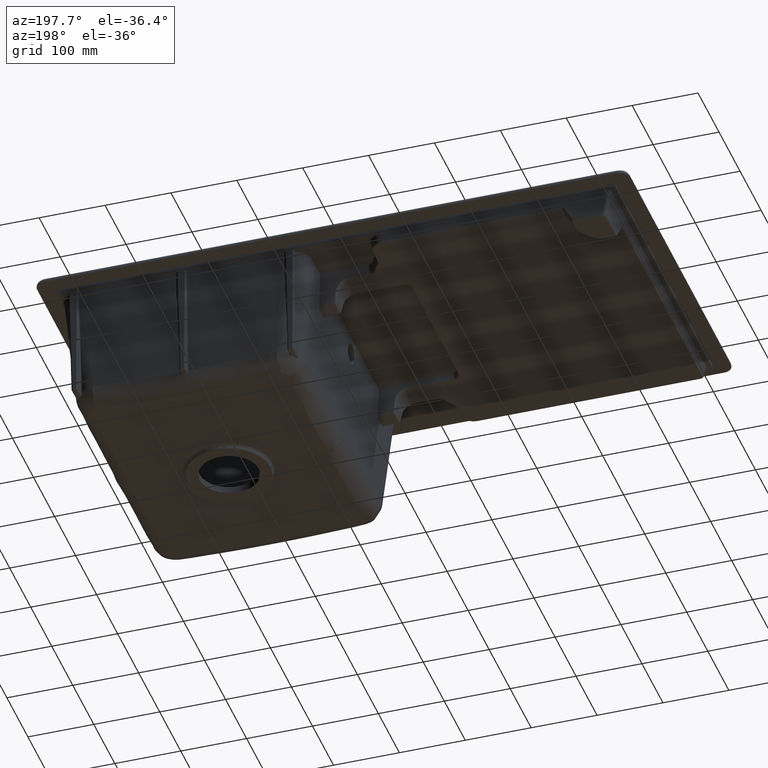
[diagram: clean part render]
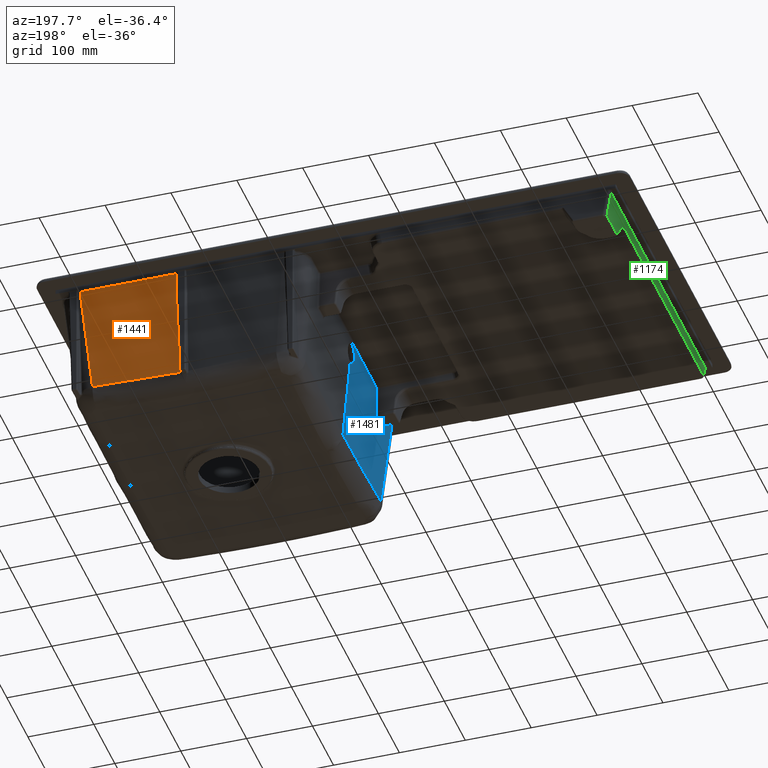
[diagram: same view with three faces highlighted in distinct colors, each labeled with its STEP entity id]
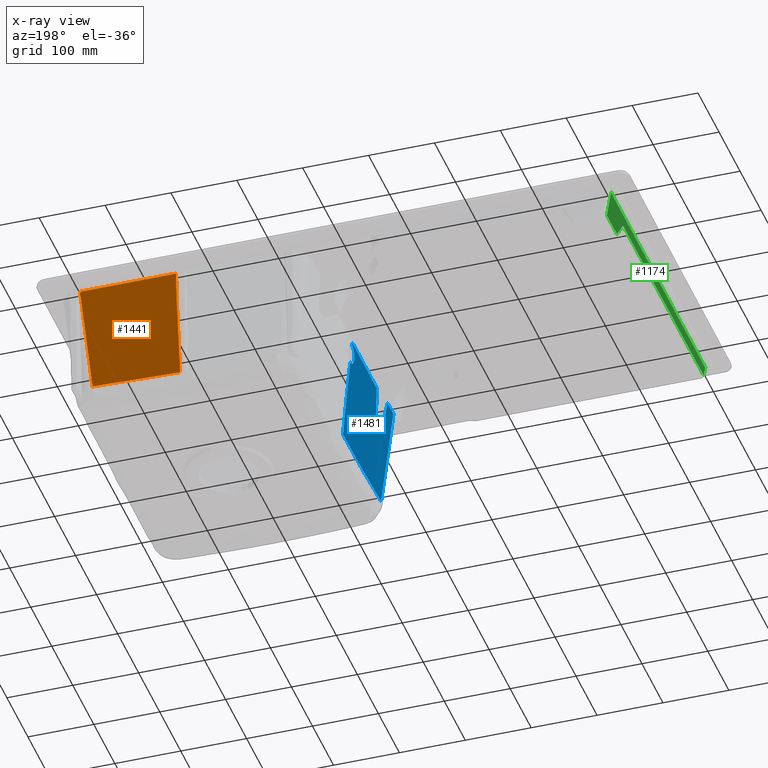
[diagram: x-ray of the same camera — body ghosted, the three highlighted faces saturated]
A machine part, auxiliary view with three faces highlighted in distinct colors.
The next image is the same camera in x-ray (body ghosted, the three faces saturated) — at least one of them is partly hidden behind the body in this view.
Their STEP definitions:

[orange] entity #1441 — the highlighted planar face has unit normal (0, 0.9962, -0.0872).
#310=PLANE('',#5599);
#496=B_SPLINE_CURVE_WITH_KNOTS('',3,(#13981,#13982,#13983,#13984),
 .UNSPECIFIED.,.F.,.F.,(4,4),(0.,1.),.UNSPECIFIED.);
#565=ELLIPSE('',#5532,76.4366617339651,4.);
#865=LINE('',#13273,#1097);
#866=LINE('',#13296,#1098);
#904=LINE('',#13979,#1136);
#1097=VECTOR('',#6525,1.);
#1098=VECTOR('',#6532,1.);
#1136=VECTOR('',#6702,1.);
#1441=ADVANCED_FACE('',(#1791),#310,.T.);
#1791=FACE_OUTER_BOUND('',#2133,.T.);
#2133=EDGE_LOOP('',(#3488,#3489,#3490,#3491,#3492));
#3488=ORIENTED_EDGE('',*,*,#4754,.T.);
#3489=ORIENTED_EDGE('',*,*,#4756,.T.);
#3490=ORIENTED_EDGE('',*,*,#4757,.T.);
#3491=ORIENTED_EDGE('',*,*,#4857,.F.);
#3492=ORIENTED_EDGE('',*,*,#4858,.F.);
#3995=VERTEX_POINT('',#12109);
#4078=VERTEX_POINT('',#13272);
#4079=VERTEX_POINT('',#13274);
#4080=VERTEX_POINT('',#13297);
#4131=VERTEX_POINT('',#13980);
#4754=EDGE_CURVE('',#4079,#4078,#865,.T.);
#4756=EDGE_CURVE('',#4078,#3995,#565,.T.);
#4757=EDGE_CURVE('',#3995,#4080,#866,.T.);
#4857=EDGE_CURVE('',#4131,#4080,#904,.T.);
#4858=EDGE_CURVE('',#4079,#4131,#496,.T.);
#5532=AXIS2_PLACEMENT_3D('',#13277,#6530,#6531);
#5599=AXIS2_PLACEMENT_3D('',#13985,#6703,#6704);
#6525=DIRECTION('',(0.0138685207499616,0.0871473607568921,0.996098891498889));
#6530=DIRECTION('',(0.,-0.996194698091746,0.0871557427476581));
#6531=DIRECTION('',(-0.0139066043304501,-0.0871473146568106,-0.996098364572547));
#6532=DIRECTION('',(1.,0.,0.));
#6702=DIRECTION('',(0.0868265938642475,0.0868265938642475,0.992432509138967));
#6703=DIRECTION('',(0.,0.996194698091746,-0.0871557427476581));
#6704=DIRECTION('',(0.,-0.0871557427476581,-0.996194698091746));
#12109=CARTESIAN_POINT('',(242.875574203679,227.54600273189,-17.2305180232939));
#13272=CARTESIAN_POINT('',(243.170141000666,223.151817478466,-67.4562852979467));
#13273=CARTESIAN_POINT('',(243.699061756251,226.475463073393,-29.4668423120932));
#13274=CARTESIAN_POINT('',(241.542630858347,212.924725594392,-184.352480438068));
#13277=CARTESIAN_POINT('',(239.1697552168,223.151817478466,-67.456285297946));
#13296=CARTESIAN_POINT('',(81.0892271771793,227.54600273189,-17.2305180232939));
#13297=CARTESIAN_POINT('',(388.67538299677,227.54600273189,-17.2305180232939));
#13979=CARTESIAN_POINT('',(387.587709342914,226.458329078033,-29.6626847752077));
#13980=CARTESIAN_POINT('',(374.39510376952,213.265717239195,-180.454928102314));
#13981=CARTESIAN_POINT('',(241.542627541461,212.924807321927,-184.351546288062));
#13982=CARTESIAN_POINT('',(285.839404164503,212.938939053745,-184.190019854248));
#13983=CARTESIAN_POINT('',(330.149549384421,213.04935091711,-182.928006481146));
#13984=CARTESIAN_POINT('',(374.395101315718,213.265721050837,-180.454884535889));
#13985=CARTESIAN_POINT('',(59.9999999999999,228.946725773284,-1.22018039846721));

[blue] entity #1481 — the highlighted planar face has unit normal (-0.9962, 0, -0.0872).
#316=PLANE('',#5642);
#513=B_SPLINE_CURVE_WITH_KNOTS('',3,(#14467,#14468,#14469,#14470,#14471,
#14472,#14473,#14474,#14475,#14476,#14477,#14478,#14479,#14480,#14481,#14482,
#14483,#14484,#14485,#14486,#14487,#14488,#14489,#14490,#14491,#14492,#14493,
#14494,#14495,#14496,#14497,#14498,#14499,#14500,#14501,#14502,#14503,#14504,
#14505,#14506,#14507),.UNSPECIFIED.,.F.,.F.,(4,1,1,1,1,1,2,2,1,1,1,1,1,
2,2,1,1,1,1,1,2,2,1,1,1,1,1,1,2,2,4),(0.,0.124999999999998,0.187499999999997,
0.218749999999997,0.234374999999996,0.242187499999996,0.246093749999996,
0.249999999999996,0.374999999999992,0.43749999999999,0.46874999999999,0.484374999999989,
0.492187499999989,0.496093749999989,0.499999999999988,0.562499999999985,
0.593749999999983,0.609374999999983,0.617187499999982,0.621093749999982,
0.623046874999982,0.624999999999982,0.687499999999979,0.718749999999978,
0.734374999999977,0.742187499999977,0.746093749999977,0.748046874999976,
0.749023437499977,0.749999999999977,1.),.UNSPECIFIED.);
#525=B_SPLINE_CURVE_WITH_KNOTS('',3,(#15335,#15336,#15337,#15338),
 .UNSPECIFIED.,.F.,.F.,(4,4),(0.,1.),.UNSPECIFIED.);
#573=ELLIPSE('',#5626,6.02291902526008,6.);
#574=ELLIPSE('',#5630,6.02291902526008,6.);
#909=LINE('',#14413,#1141);
#910=LINE('',#14417,#1142);
#911=LINE('',#14442,#1143);
#912=LINE('',#14465,#1144);
#913=LINE('',#14520,#1145);
#914=LINE('',#14526,#1146);
#918=LINE('',#15255,#1150);
#1141=VECTOR('',#6753,1.);
#1142=VECTOR('',#6758,1.);
#1143=VECTOR('',#6767,1.);
#1144=VECTOR('',#6774,1.);
#1145=VECTOR('',#6777,1.);
#1146=VECTOR('',#6778,1.);
#1150=VECTOR('',#6800,1.);
#1481=ADVANCED_FACE('',(#1829),#316,.T.);
#1829=FACE_OUTER_BOUND('',#2175,.T.);
#2175=EDGE_LOOP('',(#3680,#3681,#3682,#3683,#3684,#3685,#3686,#3687,#3688,
#3689,#3690,#3691));
#3680=ORIENTED_EDGE('',*,*,#4893,.T.);
#3681=ORIENTED_EDGE('',*,*,#4908,.T.);
#3682=ORIENTED_EDGE('',*,*,#4933,.F.);
#3683=ORIENTED_EDGE('',*,*,#4929,.T.);
#3684=ORIENTED_EDGE('',*,*,#4895,.T.);
#3685=ORIENTED_EDGE('',*,*,#4897,.T.);
#3686=ORIENTED_EDGE('',*,*,#4899,.T.);
#3687=ORIENTED_EDGE('',*,*,#4901,.T.);
#3688=ORIENTED_EDGE('',*,*,#4903,.T.);
#3689=ORIENTED_EDGE('',*,*,#4904,.T.);
#3690=ORIENTED_EDGE('',*,*,#4905,.T.);
#3691=ORIENTED_EDGE('',*,*,#4906,.T.);
#4110=VERTEX_POINT('',#13593);
#4115=VERTEX_POINT('',#13625);
#4117=VERTEX_POINT('',#13718);
#4146=VERTEX_POINT('',#14361);
#4147=VERTEX_POINT('',#14409);
#4148=VERTEX_POINT('',#14410);
#4149=VERTEX_POINT('',#14416);
#4150=VERTEX_POINT('',#14420);
#4151=VERTEX_POINT('',#14441);
#4152=VERTEX_POINT('',#14445);
#4153=VERTEX_POINT('',#14525);
#4166=VERTEX_POINT('',#15256);
#4893=EDGE_CURVE('',#4147,#4148,#5166,.T.);
#4895=EDGE_CURVE('',#4146,#4110,#909,.T.);
#4897=EDGE_CURVE('',#4110,#4149,#910,.T.);
#4899=EDGE_CURVE('',#4149,#4150,#573,.T.);
#4901=EDGE_CURVE('',#4150,#4151,#911,.T.);
#4903=EDGE_CURVE('',#4151,#4152,#574,.T.);
#4904=EDGE_CURVE('',#4152,#4115,#912,.T.);
#4905=EDGE_CURVE('',#4115,#4117,#513,.T.);
#4906=EDGE_CURVE('',#4117,#4147,#913,.T.);
#4908=EDGE_CURVE('',#4148,#4153,#914,.T.);
#4929=EDGE_CURVE('',#4166,#4146,#918,.T.);
#4933=EDGE_CURVE('',#4166,#4153,#525,.T.);
#5166=CIRCLE('',#5619,15.);
#5619=AXIS2_PLACEMENT_3D('',#14408,#6747,#6748);
#5626=AXIS2_PLACEMENT_3D('',#14421,#6763,#6764);
#5630=AXIS2_PLACEMENT_3D('',#14446,#6772,#6773);
#5642=AXIS2_PLACEMENT_3D('',#15339,#6803,#6804);
#6747=DIRECTION('',(0.996194698091746,-1.92906678633307E-16,0.0871557427476581));
#6748=DIRECTION('',(-0.0871557427476582,0.,0.996194698091746));
#6753=DIRECTION('',(1.93643550806713E-16,1.,-1.63206886669481E-35));
#6758=DIRECTION('',(0.0858414827856259,0.173007208809882,-0.981172637986292));
#6763=DIRECTION('',(0.996194698091746,-1.92906678633307E-16,0.0871557427476581));
#6764=DIRECTION('',(0.0871557427476581,2.20493342633068E-15,-0.996194698091746));
#6767=DIRECTION('',(1.93643550806713E-16,1.,-2.14855494122273E-33));
#6772=DIRECTION('',(0.996194698091746,-1.92906678633307E-16,0.0871557427476581));
#6773=DIRECTION('',(-0.0871557427476581,-2.20493342633068E-15,0.996194698091746));
#6774=DIRECTION('',(-0.0858414827856258,0.173007208809883,0.981172637986292));
#6777=DIRECTION('',(0.0871557427476581,0.,-0.996194698091746));
#6778=DIRECTION('',(0.0871557427476581,0.,-0.996194698091746));
#6800=DIRECTION('',(-0.0868265938642475,-0.0868265938642475,0.992432509138967));
#6803=DIRECTION('',(-0.996194698091746,1.92906678633307E-16,-0.0871557427476581));
#6804=DIRECTION('',(0.0871557427476581,0.,-0.996194698091746));
#13593=CARTESIAN_POINT('',(47.4581980142829,-165.379944982705,-17.278532771757));
#13625=CARTESIAN_POINT('',(48.154847880847,-116.239401748576,-25.2412771832962));
#13718=CARTESIAN_POINT('',(48.1550129204591,-8.66056237669675E-15,-25.2431635946945));
#14361=CARTESIAN_POINT('',(47.4581980142829,-193.671182250598,-17.278532771757));
#14408=CARTESIAN_POINT('',(49.8109720329926,1.20210610259689E-14,-44.1708628621866));
#14409=CARTESIAN_POINT('',(48.5036358917778,7.19013845904568E-30,-29.2279423908104));
#14410=CARTESIAN_POINT('',(51.1183081742075,9.24446373305873E-30,-59.1137833335628));
#14413=CARTESIAN_POINT('',(47.458198014283,215.,-17.278532771757));
#14416=CARTESIAN_POINT('',(51.70156346715,-156.82775332504,-65.7804218377586));
#14417=CARTESIAN_POINT('',(51.7234183459774,-156.783706420652,-66.0302242458258));
#14420=CARTESIAN_POINT('',(52.1353419663788,-150.918906806967,-70.738532771757));
#14421=CARTESIAN_POINT('',(51.6104099852233,-150.918906806967,-64.738532771757));
#14441=CARTESIAN_POINT('',(52.1353419663788,-129.296393243623,-70.738532771757));
#14442=CARTESIAN_POINT('',(52.1353419663788,-129.296393243623,-70.738532771757));
#14445=CARTESIAN_POINT('',(51.70156346715,-123.38754672555,-65.7804218377586));
#14446=CARTESIAN_POINT('',(51.6104099852233,-129.296393243623,-64.738532771757));
#14465=CARTESIAN_POINT('',(48.1995728258524,-116.329541592504,-25.7524856439459));
#14467=CARTESIAN_POINT('',(48.1548478810703,-116.239401748575,-25.2412771858484));
#14468=CARTESIAN_POINT('',(48.1546323736847,-111.775204548689,-25.2388139251589));
#14469=CARTESIAN_POINT('',(48.1543753283463,-104.794572673506,-25.2358758834973));
#14470=CARTESIAN_POINT('',(48.1541913196634,-96.1529140205883,-25.2337726546274));
#14471=CARTESIAN_POINT('',(48.1541282847082,-91.7076876611619,-25.2330521617929));
#14472=CARTESIAN_POINT('',(48.1541040095772,-89.4539752232068,-25.2327746957758));
#14473=CARTESIAN_POINT('',(48.1540936825983,-88.3193441896688,-25.2326566578673));
#14474=CARTESIAN_POINT('',(48.1540896447331,-87.8314077150323,-25.2326105048565));
#14475=CARTESIAN_POINT('',(48.1540870390414,-87.5057465026766,-25.2325807216636));
#14476=CARTESIAN_POINT('',(48.1540855244733,-87.3085471923058,-25.2325634100717));
#14477=CARTESIAN_POINT('',(48.1540537852026,-83.0509780781992,-25.2322006285474));
#14478=CARTESIAN_POINT('',(48.1540487534504,-76.3220832147752,-25.2321431153568));
#14479=CARTESIAN_POINT('',(48.1541148683775,-67.5335885172113,-25.2328988124307));
#14480=CARTESIAN_POINT('',(48.1541659221671,-62.9048118292038,-25.2334823599167));
#14481=CARTESIAN_POINT('',(48.1541959481435,-60.5317911503935,-25.233825558397));
#14482=CARTESIAN_POINT('',(48.154212085902,-59.3306227272869,-25.2340100138215));
#14483=CARTESIAN_POINT('',(48.1542192431065,-58.8126952423051,-25.2340918210429));
#14484=CARTESIAN_POINT('',(48.1542240681366,-58.4667122483315,-25.2341469713897));
#14485=CARTESIAN_POINT('',(48.1542272964226,-58.2378019257366,-25.2341838708667));
#14486=CARTESIAN_POINT('',(48.1542558068669,-56.2297674106578,-25.2345097467367));
#14487=CARTESIAN_POINT('',(48.1543057489522,-52.9960913533397,-25.2350805873838));
#14488=CARTESIAN_POINT('',(48.1543809757993,-48.5255626351802,-25.2359404341807));
#14489=CARTESIAN_POINT('',(48.1544228294931,-46.1158216132783,-25.2364188240897));
#14490=CARTESIAN_POINT('',(48.1544448164075,-44.8673319366218,-25.2366701356718));
#14491=CARTESIAN_POINT('',(48.1544560748817,-44.2321823068672,-25.2367988206197));
#14492=CARTESIAN_POINT('',(48.1544609567313,-43.9576385816667,-25.2368546204168));
#14493=CARTESIAN_POINT('',(48.1544642239176,-43.7740901557508,-25.236891964527));
#14494=CARTESIAN_POINT('',(48.1544652256691,-43.7178337133903,-25.2369034145991));
#14495=CARTESIAN_POINT('',(48.1545406097,-39.491494104846,-25.237765058015));
#14496=CARTESIAN_POINT('',(48.1546275079516,-34.6015527022501,-25.2387583095757));
#14497=CARTESIAN_POINT('',(48.1546890745613,-31.0971789785492,-25.2394620191444));
#14498=CARTESIAN_POINT('',(48.1547099041952,-29.8951315948638,-25.2397001029491));
#14499=CARTESIAN_POINT('',(48.1547178305944,-29.4316427725625,-25.2397907021065));
#14500=CARTESIAN_POINT('',(48.1547211716895,-29.2342820787972,-25.239828890999));
#14501=CARTESIAN_POINT('',(48.154722686711,-29.1441976612608,-25.2398462077737));
#14502=CARTESIAN_POINT('',(48.1547233026789,-29.1074320386051,-25.239853248319));
#14503=CARTESIAN_POINT('',(48.1547237059182,-29.0833309534702,-25.2398578573648));
#14504=CARTESIAN_POINT('',(48.1547233459059,-29.1049274735508,-25.2398537424054));
#14505=CARTESIAN_POINT('',(48.1549166465409,-17.5184396361901,-25.2420631787736));
#14506=CARTESIAN_POINT('',(48.1550129207871,-7.83182501509388,-25.2431635984434));
#14507=CARTESIAN_POINT('',(48.1550129207871,-4.86237495114489E-14,-25.2431635984434));
#14520=CARTESIAN_POINT('',(46.0532742267155,0.,-1.22018039846722));
#14525=CARTESIAN_POINT('',(62.3081320463112,-3.1750617482795E-11,-187.014055450396));
#14526=CARTESIAN_POINT('',(46.0532742267155,0.,-1.22018039846722));
#15255=CARTESIAN_POINT('',(45.9030708312433,-195.226309433637,0.496652267832122));
#15256=CARTESIAN_POINT('',(61.7455533310888,-179.383861778335,-180.583751289763));
#15335=CARTESIAN_POINT('',(61.745534266479,-179.383845998401,-180.583533401497));
#15336=CARTESIAN_POINT('',(62.1210336964275,-119.666838201357,-184.875511525465));
#15337=CARTESIAN_POINT('',(62.3079787046606,-59.8719806727271,-187.012302747309));
#15338=CARTESIAN_POINT('',(62.3081291082136,-5.05297216477133E-20,-187.014021867787));
#15339=CARTESIAN_POINT('',(46.0532742267155,215.,-1.22018039846721));

[green] entity #1174 — the highlighted planar face has unit normal (0.9848, -0, 0.1736).
#264=PLANE('',#5223);
#537=ELLIPSE('',#5213,6.09255967131447,6.);
#696=LINE('',#6903,#928);
#698=LINE('',#6909,#930);
#711=LINE('',#7093,#943);
#712=LINE('',#7125,#944);
#713=LINE('',#7127,#945);
#714=LINE('',#7129,#946);
#928=VECTOR('',#5706,1.);
#930=VECTOR('',#5712,1.);
#943=VECTOR('',#5755,1.);
#944=VECTOR('',#5758,1.);
#945=VECTOR('',#5759,1.);
#946=VECTOR('',#5760,1.);
#1174=ADVANCED_FACE('',(#1529),#264,.F.);
#1529=FACE_OUTER_BOUND('',#1861,.T.);
#1861=EDGE_LOOP('',(#2283,#2284,#2285,#2286,#2287,#2288,#2289));
#2283=ORIENTED_EDGE('',*,*,#4216,.T.);
#2284=ORIENTED_EDGE('',*,*,#4235,.F.);
#2285=ORIENTED_EDGE('',*,*,#4236,.F.);
#2286=ORIENTED_EDGE('',*,*,#4237,.F.);
#2287=ORIENTED_EDGE('',*,*,#4232,.T.);
#2288=ORIENTED_EDGE('',*,*,#4200,.T.);
#2289=ORIENTED_EDGE('',*,*,#4203,.T.);
#3736=VERTEX_POINT('',#6823);
#3751=VERTEX_POINT('',#6878);
#3753=VERTEX_POINT('',#6908);
#3763=VERTEX_POINT('',#6958);
#3772=VERTEX_POINT('',#7094);
#3774=VERTEX_POINT('',#7126);
#3775=VERTEX_POINT('',#7128);
#4200=EDGE_CURVE('',#3751,#3736,#696,.T.);
#4203=EDGE_CURVE('',#3736,#3753,#698,.T.);
#4216=EDGE_CURVE('',#3753,#3763,#537,.T.);
#4232=EDGE_CURVE('',#3772,#3751,#711,.T.);
#4235=EDGE_CURVE('',#3774,#3763,#712,.T.);
#4236=EDGE_CURVE('',#3775,#3774,#713,.T.);
#4237=EDGE_CURVE('',#3772,#3775,#714,.T.);
#5213=AXIS2_PLACEMENT_3D('',#6959,#5730,#5731);
#5223=AXIS2_PLACEMENT_3D('',#7130,#5761,#5762);
#5706=DIRECTION('',(-4.74454284027845E-16,-1.,1.21331319792764E-32));
#5712=DIRECTION('',(-0.150953786239881,-0.494270410408069,0.856101463504697));
#5730=DIRECTION('',(0.984807753012208,-4.67246257360478E-16,0.17364817766693));
#5731=DIRECTION('',(0.17364817766693,2.64988520465289E-15,-0.984807753012208));
#5755=DIRECTION('',(0.173545582773559,-0.0343699260770903,-0.984225908458643));
#5758=DIRECTION('',(4.74454284027845E-16,1.,-1.24991583524642E-32));
#5759=DIRECTION('',(0.173545582773559,0.0343699260770903,-0.984225908458643));
#5760=DIRECTION('',(-4.74454284027845E-16,-1.,1.24991583524642E-32));
#5761=DIRECTION('',(0.984807753012208,-4.67246257360478E-16,0.17364817766693));
#5762=DIRECTION('',(-0.17364817766693,0.,0.984807753012208));
#6823=CARTESIAN_POINT('',(-409.421299822498,174.520560588193,-55.5209445330008));
#6878=CARTESIAN_POINT('',(-409.421299822498,222.595576256541,-55.5209445330008));
#6903=CARTESIAN_POINT('',(-409.421299822498,174.520560588193,-55.5209445330008));
#6908=CARTESIAN_POINT('',(-413.300493398084,161.818854666021,-33.5209445330008));
#6909=CARTESIAN_POINT('',(-419.440222486571,141.715440952778,1.29918942391282));
#6958=CARTESIAN_POINT('',(-413.82947434021,156.622702243315,-30.5209445330008));
#6959=CARTESIAN_POINT('',(-412.771512455959,156.622702243315,-36.5209445330008));
#7093=CARTESIAN_POINT('',(-416.361196251345,223.969991689248,-16.1628360860489));
#7094=CARTESIAN_POINT('',(-416.210221673078,223.940091849611,-17.0190554669992));
#7125=CARTESIAN_POINT('',(-413.82947434021,117.,-30.5209445330008));
#7126=CARTESIAN_POINT('',(-413.82947434021,-223.468595493834,-30.5209445330007));
#7127=CARTESIAN_POINT('',(-414.965445020227,-223.693569403708,-24.078534667799));
#7128=CARTESIAN_POINT('',(-416.210221673078,-223.940091849611,-17.0190554669991));
#7129=CARTESIAN_POINT('',(-416.210221673078,117.,-17.0190554669992));
#7130=CARTESIAN_POINT('',(-417.,117.,-12.54));